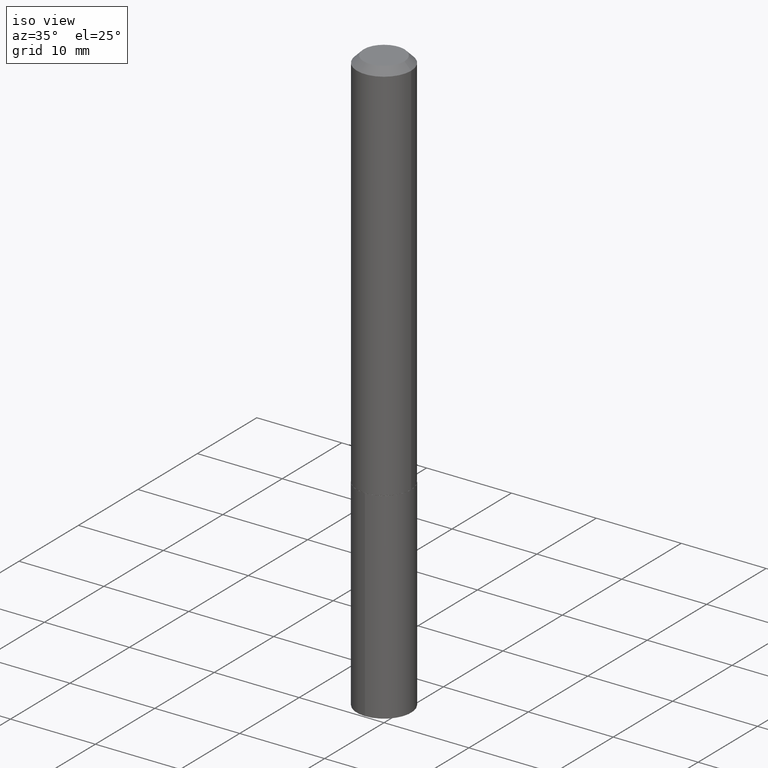
[diagram: clean part render]
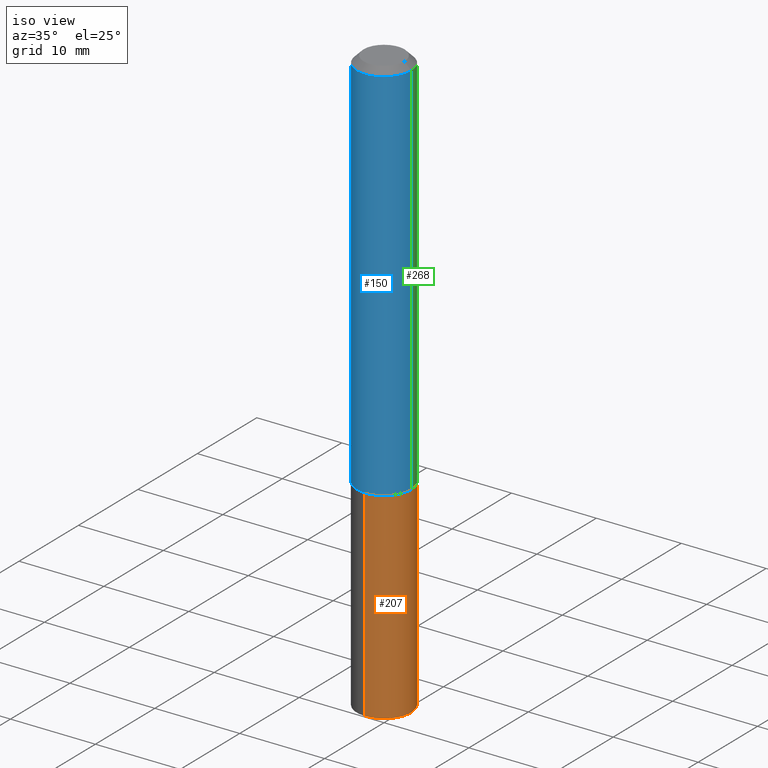
[diagram: same view with three faces highlighted in distinct colors, each labeled with its STEP entity id]
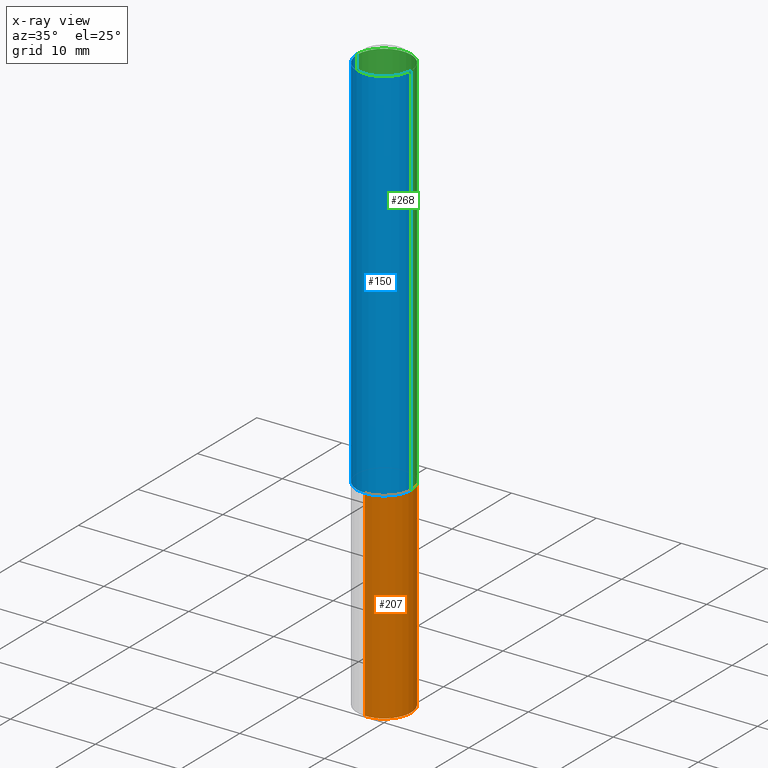
[diagram: x-ray of the same camera — body ghosted, the three highlighted faces saturated]
A machine part, iso view with three faces highlighted in distinct colors.
The next image is the same camera in x-ray (body ghosted, the three faces saturated) — at least one of them is partly hidden behind the body in this view.
Their STEP definitions:

[orange] entity #207 — the highlighted cylindrical surface (edge-blend (fillet) strip) has radius 3.2004 mm, axis along (-0, 0, 1).
#6 = CARTESIAN_POINT ( 'NONE',  ( 8.952838470577930965E-16, 0.1259999999999937559, -1.787400000000000766 ) ) ;
#9 = CARTESIAN_POINT ( 'NONE',  ( 8.952838470577698251E-16, 0.1259999999999937559, -1.787400000000000766 ) ) ;
#48 = VERTEX_POINT ( 'NONE', #198 ) ;
#59 = DIRECTION ( 'NONE',  ( -6.982962677686265922E-15, -1.000000000000000000, 4.336266656609941617E-15 ) ) ;
#60 = LINE ( 'NONE', #175, #258 ) ;
#66 = DIRECTION ( 'NONE',  ( -2.445628323095046434E-29, 3.491252901549015115E-15, 1.000000000000000000 ) ) ;
#80 = VECTOR ( 'NONE', #360, 39.37007874015748143 ) ;
#95 = AXIS2_PLACEMENT_3D ( 'NONE', #267, #361, #206 ) ;
#100 = DIRECTION ( 'NONE',  ( -6.982962677686265922E-15, -1.000000000000000000, 4.336266656609941617E-15 ) ) ;
#114 = EDGE_CURVE ( 'NONE', #144, #116, #236, .T. ) ;
#116 = VERTEX_POINT ( 'NONE', #6 ) ;
#126 = CYLINDRICAL_SURFACE ( 'NONE', #95, 0.1260000000000000009 ) ;
#135 = AXIS2_PLACEMENT_3D ( 'NONE', #332, #216, #100 ) ;
#136 = EDGE_CURVE ( 'NONE', #172, #116, #368, .T. ) ;
#144 = VERTEX_POINT ( 'NONE', #301 ) ;
#147 = ORIENTED_EDGE ( 'NONE', *, *, #262, .T. ) ;
#154 = FACE_OUTER_BOUND ( 'NONE', #213, .T. ) ;
#158 = CIRCLE ( 'NONE', #135, 0.1260000000000000009 ) ;
#172 = VERTEX_POINT ( 'NONE', #303 ) ;
#175 = CARTESIAN_POINT ( 'NONE',  ( -8.798532973884258671E-16, -0.1260000000000062459, -1.787399999999999656 ) ) ;
#182 = EDGE_CURVE ( 'NONE', #48, #172, #60, .T. ) ;
#198 = CARTESIAN_POINT ( 'NONE',  ( -8.798532973884031874E-16, -0.1260000000000095766, -2.722138401753678050 ) ) ;
#206 = DIRECTION ( 'NONE',  ( -6.982962677686265922E-15, -1.000000000000000000, 4.336266656609941617E-15 ) ) ;
#207 = ADVANCED_FACE ( 'NONE', ( #154 ), #126, .T. ) ;
#213 = EDGE_LOOP ( 'NONE', ( #147, #254, #290, #358 ) ) ;
#216 = DIRECTION ( 'NONE',  ( -2.445628323095046715E-29, 3.491252901549015509E-15, 1.000000000000000000 ) ) ;
#236 = LINE ( 'NONE', #9, #80 ) ;
#254 = ORIENTED_EDGE ( 'NONE', *, *, #114, .T. ) ;
#258 = VECTOR ( 'NONE', #66, 39.37007874015748143 ) ;
#262 = EDGE_CURVE ( 'NONE', #48, #144, #158, .T. ) ;
#267 = CARTESIAN_POINT ( 'NONE',  ( 4.371030944175314115E-29, -6.240673745048238660E-15, -1.787400000000000100 ) ) ;
#290 = ORIENTED_EDGE ( 'NONE', *, *, #136, .F. ) ;
#301 = CARTESIAN_POINT ( 'NONE',  ( 8.952838470577932937E-16, 0.1259999999999905362, -2.722138401753679382 ) ) ;
#303 = CARTESIAN_POINT ( 'NONE',  ( -8.798532973884258671E-16, -0.1260000000000062459, -1.787399999999999656 ) ) ;
#325 = DIRECTION ( 'NONE',  ( -2.445628323095046715E-29, 3.491252901549015509E-15, 1.000000000000000000 ) ) ;
#327 = CARTESIAN_POINT ( 'NONE',  ( 4.371030944175314115E-29, -6.240673745048238660E-15, -1.787400000000000100 ) ) ;
#332 = CARTESIAN_POINT ( 'NONE',  ( 6.657053654188704895E-29, -9.504081902360058107E-15, -2.722138401753678494 ) ) ;
#358 = ORIENTED_EDGE ( 'NONE', *, *, #182, .F. ) ;
#360 = DIRECTION ( 'NONE',  ( -2.445628323095046434E-29, 3.491252901549015115E-15, 1.000000000000000000 ) ) ;
#361 = DIRECTION ( 'NONE',  ( -2.445628323095046715E-29, 3.491252901549015509E-15, 1.000000000000000000 ) ) ;
#368 = CIRCLE ( 'NONE', #383, 0.1260000000000000009 ) ;
#383 = AXIS2_PLACEMENT_3D ( 'NONE', #327, #325, #59 ) ;

[blue] entity #150 — the highlighted cylindrical surface (edge-blend (fillet) strip) has radius 3.2004 mm, axis along (-0, 0, 1).
#2 = CARTESIAN_POINT ( 'NONE',  ( -0.1260000000000001119, 8.952838470577270294E-16, -6.197858213721186913E-30 ) ) ;
#7 = DIRECTION ( 'NONE',  ( 1.000000000000000000, -6.982962677686266711E-15, 4.876176775795935793E-29 ) ) ;
#12 = DIRECTION ( 'NONE',  ( 1.000000000000000000, -6.982962677686268288E-15, 0.000000000000000000 ) ) ;
#33 = CIRCLE ( 'NONE', #176, 0.1260000000000000009 ) ;
#34 = DIRECTION ( 'NONE',  ( 1.000000000000000000, -6.982962677686265922E-15, 0.000000000000000000 ) ) ;
#37 = DIRECTION ( 'NONE',  ( -2.445468806185136597E-29, 3.491481338843145583E-15, 1.000000000000000000 ) ) ;
#38 = AXIS2_PLACEMENT_3D ( 'NONE', #92, #264, #7 ) ;
#58 = ORIENTED_EDGE ( 'NONE', *, *, #341, .T. ) ;
#83 = VERTEX_POINT ( 'NONE', #204 ) ;
#92 = CARTESIAN_POINT ( 'NONE',  ( 0.000000000000000000, 0.000000000000000000, 0.000000000000000000 ) ) ;
#94 = ORIENTED_EDGE ( 'NONE', *, *, #178, .F. ) ;
#96 = CIRCLE ( 'NONE', #283, 0.1260000000000001952 ) ;
#98 = CARTESIAN_POINT ( 'NONE',  ( -0.1260000000000000009, -2.278734551051105310E-15, -0.03125000000000021511 ) ) ;
#101 = CARTESIAN_POINT ( 'NONE',  ( 0.1260000000000001119, -8.798532973884703392E-16, 6.143982737502884452E-30 ) ) ;
#105 = VECTOR ( 'NONE', #339, 39.37007874015748143 ) ;
#113 = VERTEX_POINT ( 'NONE', #98 ) ;
#121 = DIRECTION ( 'NONE',  ( -2.445468806185136877E-29, 3.491481338843145188E-15, 1.000000000000000000 ) ) ;
#123 = LINE ( 'NONE', #2, #192 ) ;
#137 = VERTEX_POINT ( 'NONE', #212 ) ;
#149 = FACE_OUTER_BOUND ( 'NONE', #284, .T. ) ;
#150 = ADVANCED_FACE ( 'NONE', ( #149 ), #238, .T. ) ;
#176 = AXIS2_PLACEMENT_3D ( 'NONE', #296, #37, #34 ) ;
#178 = EDGE_CURVE ( 'NONE', #83, #113, #123, .T. ) ;
#192 = VECTOR ( 'NONE', #121, 39.37007874015748143 ) ;
#193 = EDGE_CURVE ( 'NONE', #113, #137, #33, .T. ) ;
#204 = CARTESIAN_POINT ( 'NONE',  ( -0.1260000000000001952, -5.343644157321089338E-15, -1.786900000000000377 ) ) ;
#212 = CARTESIAN_POINT ( 'NONE',  ( 0.1260000000000000009, -9.889620892273186510E-16, -0.03125000000000021511 ) ) ;
#238 = CYLINDRICAL_SURFACE ( 'NONE', #38, 0.1260000000000001119 ) ;
#264 = DIRECTION ( 'NONE',  ( -2.445468806185136597E-29, 3.491481338843145583E-15, 1.000000000000000000 ) ) ;
#275 = CARTESIAN_POINT ( 'NONE',  ( 4.369808209772221314E-29, -6.238928004378817156E-15, -1.786900000000000377 ) ) ;
#278 = CARTESIAN_POINT ( 'NONE',  ( 0.1260000000000001952, -7.118781301767288876E-15, -1.786900000000000377 ) ) ;
#283 = AXIS2_PLACEMENT_3D ( 'NONE', #275, #371, #12 ) ;
#284 = EDGE_LOOP ( 'NONE', ( #94, #381, #58, #351 ) ) ;
#296 = CARTESIAN_POINT ( 'NONE',  ( 7.642090019328603538E-31, -1.091087918388490390E-16, -0.03125000000000021511 ) ) ;
#308 = LINE ( 'NONE', #101, #105 ) ;
#322 = VERTEX_POINT ( 'NONE', #278 ) ;
#339 = DIRECTION ( 'NONE',  ( -2.445468806185136877E-29, 3.491481338843145188E-15, 1.000000000000000000 ) ) ;
#341 = EDGE_CURVE ( 'NONE', #322, #137, #308, .T. ) ;
#351 = ORIENTED_EDGE ( 'NONE', *, *, #193, .F. ) ;
#371 = DIRECTION ( 'NONE',  ( -2.445468806185136597E-29, 3.491481338843145583E-15, 1.000000000000000000 ) ) ;
#379 = EDGE_CURVE ( 'NONE', #83, #322, #96, .T. ) ;
#381 = ORIENTED_EDGE ( 'NONE', *, *, #379, .T. ) ;

[green] entity #268 — the highlighted cylindrical surface (edge-blend (fillet) strip) has radius 3.2004 mm, axis along (-0, 0, 1).
#2 = CARTESIAN_POINT ( 'NONE',  ( -0.1260000000000001119, 8.952838470577270294E-16, -6.197858213721186913E-30 ) ) ;
#16 = DIRECTION ( 'NONE',  ( -2.445468806185136597E-29, 3.491481338843145583E-15, 1.000000000000000000 ) ) ;
#43 = CARTESIAN_POINT ( 'NONE',  ( 0.000000000000000000, 0.000000000000000000, 0.000000000000000000 ) ) ;
#45 = DIRECTION ( 'NONE',  ( 1.000000000000000000, -6.982962677686266711E-15, 4.876176775795935793E-29 ) ) ;
#68 = DIRECTION ( 'NONE',  ( -2.445468806185136597E-29, 3.491481338843145583E-15, 1.000000000000000000 ) ) ;
#75 = CYLINDRICAL_SURFACE ( 'NONE', #330, 0.1260000000000001119 ) ;
#83 = VERTEX_POINT ( 'NONE', #204 ) ;
#88 = ORIENTED_EDGE ( 'NONE', *, *, #178, .T. ) ;
#89 = AXIS2_PLACEMENT_3D ( 'NONE', #181, #16, #305 ) ;
#90 = EDGE_LOOP ( 'NONE', ( #169, #88, #115, #385 ) ) ;
#97 = DIRECTION ( 'NONE',  ( 1.000000000000000000, -6.982962677686268288E-15, 0.000000000000000000 ) ) ;
#98 = CARTESIAN_POINT ( 'NONE',  ( -0.1260000000000000009, -2.278734551051105310E-15, -0.03125000000000021511 ) ) ;
#101 = CARTESIAN_POINT ( 'NONE',  ( 0.1260000000000001119, -8.798532973884703392E-16, 6.143982737502884452E-30 ) ) ;
#105 = VECTOR ( 'NONE', #339, 39.37007874015748143 ) ;
#113 = VERTEX_POINT ( 'NONE', #98 ) ;
#115 = ORIENTED_EDGE ( 'NONE', *, *, #289, .F. ) ;
#121 = DIRECTION ( 'NONE',  ( -2.445468806185136877E-29, 3.491481338843145188E-15, 1.000000000000000000 ) ) ;
#123 = LINE ( 'NONE', #2, #192 ) ;
#124 = CARTESIAN_POINT ( 'NONE',  ( 4.369808209772221314E-29, -6.238928004378817156E-15, -1.786900000000000377 ) ) ;
#137 = VERTEX_POINT ( 'NONE', #212 ) ;
#164 = CIRCLE ( 'NONE', #276, 0.1260000000000001952 ) ;
#169 = ORIENTED_EDGE ( 'NONE', *, *, #242, .T. ) ;
#178 = EDGE_CURVE ( 'NONE', #83, #113, #123, .T. ) ;
#181 = CARTESIAN_POINT ( 'NONE',  ( 7.642090019328603538E-31, -1.091087918388490390E-16, -0.03125000000000021511 ) ) ;
#192 = VECTOR ( 'NONE', #121, 39.37007874015748143 ) ;
#204 = CARTESIAN_POINT ( 'NONE',  ( -0.1260000000000001952, -5.343644157321089338E-15, -1.786900000000000377 ) ) ;
#212 = CARTESIAN_POINT ( 'NONE',  ( 0.1260000000000000009, -9.889620892273186510E-16, -0.03125000000000021511 ) ) ;
#242 = EDGE_CURVE ( 'NONE', #322, #83, #164, .T. ) ;
#243 = FACE_OUTER_BOUND ( 'NONE', #90, .T. ) ;
#268 = ADVANCED_FACE ( 'NONE', ( #243 ), #75, .T. ) ;
#276 = AXIS2_PLACEMENT_3D ( 'NONE', #124, #362, #97 ) ;
#278 = CARTESIAN_POINT ( 'NONE',  ( 0.1260000000000001952, -7.118781301767288876E-15, -1.786900000000000377 ) ) ;
#281 = CIRCLE ( 'NONE', #89, 0.1260000000000000009 ) ;
#289 = EDGE_CURVE ( 'NONE', #137, #113, #281, .T. ) ;
#305 = DIRECTION ( 'NONE',  ( 1.000000000000000000, -6.982962677686265922E-15, 0.000000000000000000 ) ) ;
#308 = LINE ( 'NONE', #101, #105 ) ;
#322 = VERTEX_POINT ( 'NONE', #278 ) ;
#330 = AXIS2_PLACEMENT_3D ( 'NONE', #43, #68, #45 ) ;
#339 = DIRECTION ( 'NONE',  ( -2.445468806185136877E-29, 3.491481338843145188E-15, 1.000000000000000000 ) ) ;
#341 = EDGE_CURVE ( 'NONE', #322, #137, #308, .T. ) ;
#362 = DIRECTION ( 'NONE',  ( -2.445468806185136597E-29, 3.491481338843145583E-15, 1.000000000000000000 ) ) ;
#385 = ORIENTED_EDGE ( 'NONE', *, *, #341, .F. ) ;